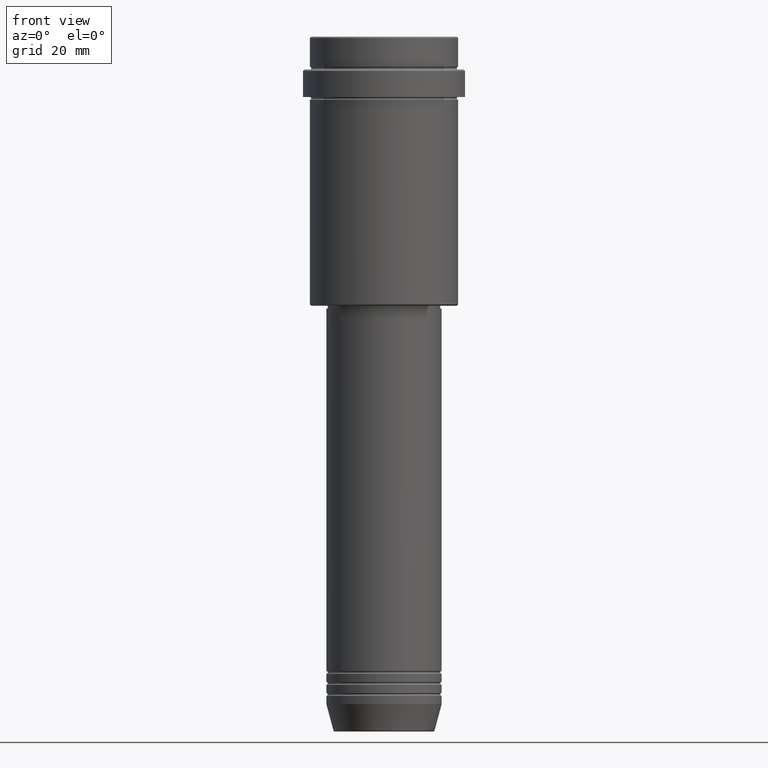
[diagram: clean part render]
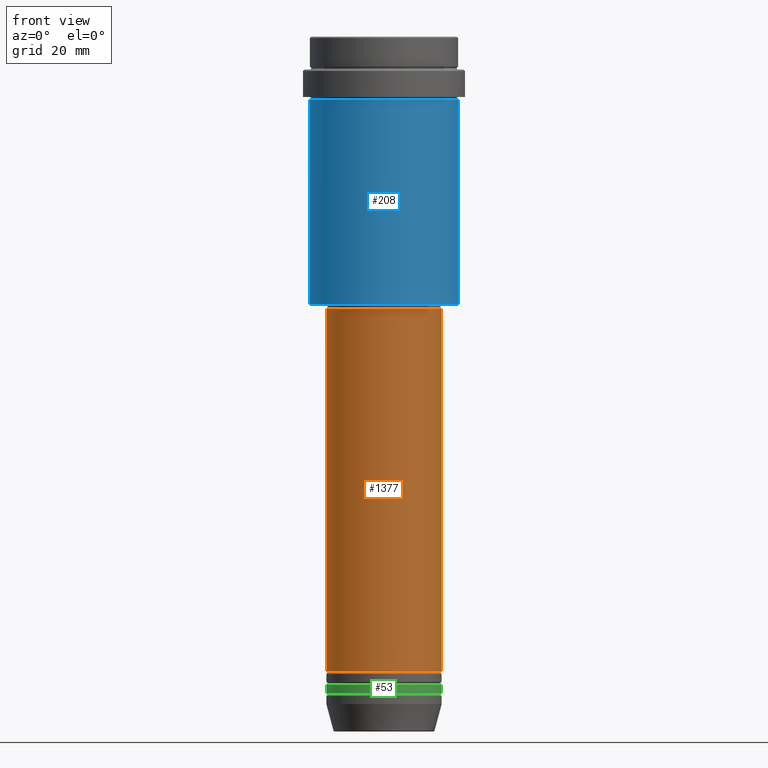
[diagram: same view with three faces highlighted in distinct colors, each labeled with its STEP entity id]
A machine part, front view with three faces highlighted in distinct colors.
Their STEP definitions:

[orange] entity #1377 — the highlighted cylindrical surface (partial cylindrical patch) has radius 21 mm, axis along (-0, -0, 1).
#70 = CYLINDRICAL_SURFACE ( 'NONE', #653, 21.00000000000000000 ) ;
#82 = VECTOR ( 'NONE', #1220, 1000.000000000000000 ) ;
#97 = CARTESIAN_POINT ( 'NONE',  ( 21.00000000000000000, 0.000000000000000000, 0.000000000000000000 ) ) ;
#159 = EDGE_LOOP ( 'NONE', ( #268, #470, #748, #266 ) ) ;
#161 = VERTEX_POINT ( 'NONE', #980 ) ;
#181 = DIRECTION ( 'NONE',  ( 1.000000000000000000, 0.000000000000000000, 0.000000000000000000 ) ) ;
#190 = VERTEX_POINT ( 'NONE', #1194 ) ;
#266 = ORIENTED_EDGE ( 'NONE', *, *, #619, .F. ) ;
#268 = ORIENTED_EDGE ( 'NONE', *, *, #471, .F. ) ;
#289 = DIRECTION ( 'NONE',  ( 1.000000000000000000, 0.000000000000000000, 0.000000000000000000 ) ) ;
#416 = CARTESIAN_POINT ( 'NONE',  ( -21.00000000000000000, 2.571758278209441661E-15, -99.00000000000000000 ) ) ;
#452 = LINE ( 'NONE', #887, #82 ) ;
#470 = ORIENTED_EDGE ( 'NONE', *, *, #585, .T. ) ;
#471 = EDGE_CURVE ( 'NONE', #190, #753, #452, .T. ) ;
#564 = AXIS2_PLACEMENT_3D ( 'NONE', #734, #1393, #1294 ) ;
#572 = CARTESIAN_POINT ( 'NONE',  ( 21.00000000000000000, 0.000000000000000000, -99.00000000000000000 ) ) ;
#585 = EDGE_CURVE ( 'NONE', #190, #161, #630, .T. ) ;
#619 = EDGE_CURVE ( 'NONE', #753, #761, #1063, .T. ) ;
#630 = CIRCLE ( 'NONE', #1384, 21.00000000000000000 ) ;
#631 = DIRECTION ( 'NONE',  ( -0.000000000000000000, -0.000000000000000000, 1.000000000000000000 ) ) ;
#653 = AXIS2_PLACEMENT_3D ( 'NONE', #1369, #631, #181 ) ;
#707 = EDGE_CURVE ( 'NONE', #161, #761, #1305, .T. ) ;
#732 = FACE_OUTER_BOUND ( 'NONE', #159, .T. ) ;
#734 = CARTESIAN_POINT ( 'NONE',  ( 0.000000000000000000, 0.000000000000000000, -99.00000000000000000 ) ) ;
#748 = ORIENTED_EDGE ( 'NONE', *, *, #707, .T. ) ;
#753 = VERTEX_POINT ( 'NONE', #416 ) ;
#761 = VERTEX_POINT ( 'NONE', #572 ) ;
#818 = VECTOR ( 'NONE', #1077, 1000.000000000000000 ) ;
#887 = CARTESIAN_POINT ( 'NONE',  ( -21.00000000000000000, 2.571758278209441661E-15, 0.000000000000000000 ) ) ;
#944 = CARTESIAN_POINT ( 'NONE',  ( 0.000000000000000000, 0.000000000000000000, -230.9999999999998863 ) ) ;
#980 = CARTESIAN_POINT ( 'NONE',  ( 21.00000000000000000, 0.000000000000000000, -230.9999999999998863 ) ) ;
#1063 = CIRCLE ( 'NONE', #564, 21.00000000000000000 ) ;
#1077 = DIRECTION ( 'NONE',  ( -0.000000000000000000, -0.000000000000000000, 1.000000000000000000 ) ) ;
#1194 = CARTESIAN_POINT ( 'NONE',  ( -21.00000000000000000, 2.571758278209441661E-15, -230.9999999999998863 ) ) ;
#1220 = DIRECTION ( 'NONE',  ( -0.000000000000000000, -0.000000000000000000, 1.000000000000000000 ) ) ;
#1294 = DIRECTION ( 'NONE',  ( 1.000000000000000000, 0.000000000000000000, 0.000000000000000000 ) ) ;
#1305 = LINE ( 'NONE', #97, #818 ) ;
#1369 = CARTESIAN_POINT ( 'NONE',  ( 0.000000000000000000, 0.000000000000000000, 0.000000000000000000 ) ) ;
#1377 = ADVANCED_FACE ( 'NONE', ( #732 ), #70, .T. ) ;
#1379 = DIRECTION ( 'NONE',  ( -0.000000000000000000, -0.000000000000000000, 1.000000000000000000 ) ) ;
#1384 = AXIS2_PLACEMENT_3D ( 'NONE', #944, #1379, #289 ) ;
#1393 = DIRECTION ( 'NONE',  ( -0.000000000000000000, -0.000000000000000000, 1.000000000000000000 ) ) ;

[blue] entity #208 — the highlighted cylindrical surface (partial cylindrical patch) has radius 27 mm, axis along (-0, -0, 1).
#26 = ORIENTED_EDGE ( 'NONE', *, *, #114, .F. ) ;
#41 = CIRCLE ( 'NONE', #812, 27.00000000000000355 ) ;
#107 = VERTEX_POINT ( 'NONE', #163 ) ;
#114 = EDGE_CURVE ( 'NONE', #1322, #801, #351, .T. ) ;
#121 = CARTESIAN_POINT ( 'NONE',  ( 27.00000000000000355, 0.000000000000000000, -23.00000000000001421 ) ) ;
#163 = CARTESIAN_POINT ( 'NONE',  ( -27.00000000000000355, 3.306546357697854128E-15, -97.50000000000004263 ) ) ;
#208 = ADVANCED_FACE ( 'NONE', ( #418 ), #1395, .T. ) ;
#282 = AXIS2_PLACEMENT_3D ( 'NONE', #516, #957, #826 ) ;
#294 = DIRECTION ( 'NONE',  ( -0.000000000000000000, -0.000000000000000000, 1.000000000000000000 ) ) ;
#351 = CIRCLE ( 'NONE', #282, 27.00000000000000355 ) ;
#375 = DIRECTION ( 'NONE',  ( -0.000000000000000000, -0.000000000000000000, 1.000000000000000000 ) ) ;
#418 = FACE_OUTER_BOUND ( 'NONE', #575, .T. ) ;
#516 = CARTESIAN_POINT ( 'NONE',  ( 0.000000000000000000, 0.000000000000000000, -23.00000000000001421 ) ) ;
#556 = DIRECTION ( 'NONE',  ( -1.000000000000000000, 0.000000000000000000, 0.000000000000000000 ) ) ;
#575 = EDGE_LOOP ( 'NONE', ( #740, #1263, #1237, #26 ) ) ;
#589 = CARTESIAN_POINT ( 'NONE',  ( 27.00000000000000355, 0.000000000000000000, -97.50000000000004263 ) ) ;
#643 = EDGE_CURVE ( 'NONE', #773, #801, #756, .T. ) ;
#680 = VECTOR ( 'NONE', #294, 1000.000000000000000 ) ;
#740 = ORIENTED_EDGE ( 'NONE', *, *, #943, .F. ) ;
#751 = CARTESIAN_POINT ( 'NONE',  ( 0.000000000000000000, 0.000000000000000000, 0.000000000000000000 ) ) ;
#756 = LINE ( 'NONE', #1193, #680 ) ;
#773 = VERTEX_POINT ( 'NONE', #589 ) ;
#801 = VERTEX_POINT ( 'NONE', #121 ) ;
#805 = CARTESIAN_POINT ( 'NONE',  ( -27.00000000000000355, 3.306546357697854128E-15, -23.00000000000001421 ) ) ;
#812 = AXIS2_PLACEMENT_3D ( 'NONE', #1234, #1131, #556 ) ;
#826 = DIRECTION ( 'NONE',  ( 1.000000000000000000, 0.000000000000000000, 0.000000000000000000 ) ) ;
#858 = DIRECTION ( 'NONE',  ( 1.000000000000000000, 0.000000000000000000, 0.000000000000000000 ) ) ;
#862 = EDGE_CURVE ( 'NONE', #107, #773, #41, .T. ) ;
#907 = VECTOR ( 'NONE', #375, 1000.000000000000000 ) ;
#943 = EDGE_CURVE ( 'NONE', #107, #1322, #1142, .T. ) ;
#957 = DIRECTION ( 'NONE',  ( -0.000000000000000000, -0.000000000000000000, 1.000000000000000000 ) ) ;
#1131 = DIRECTION ( 'NONE',  ( -0.000000000000000000, -0.000000000000000000, 1.000000000000000000 ) ) ;
#1142 = LINE ( 'NONE', #1355, #907 ) ;
#1193 = CARTESIAN_POINT ( 'NONE',  ( 27.00000000000000355, 0.000000000000000000, 0.000000000000000000 ) ) ;
#1234 = CARTESIAN_POINT ( 'NONE',  ( 0.000000000000000000, 0.000000000000000000, -97.50000000000004263 ) ) ;
#1237 = ORIENTED_EDGE ( 'NONE', *, *, #643, .T. ) ;
#1263 = ORIENTED_EDGE ( 'NONE', *, *, #862, .T. ) ;
#1301 = DIRECTION ( 'NONE',  ( -0.000000000000000000, -0.000000000000000000, 1.000000000000000000 ) ) ;
#1322 = VERTEX_POINT ( 'NONE', #805 ) ;
#1355 = CARTESIAN_POINT ( 'NONE',  ( -27.00000000000000355, 3.306546357697854128E-15, 0.000000000000000000 ) ) ;
#1395 = CYLINDRICAL_SURFACE ( 'NONE', #1408, 27.00000000000000355 ) ;
#1408 = AXIS2_PLACEMENT_3D ( 'NONE', #751, #1301, #858 ) ;

[green] entity #53 — the highlighted cylindrical surface (partial cylindrical patch) has radius 21 mm, axis along (-0, -0, 1).
#53 = ADVANCED_FACE ( 'NONE', ( #1150 ), #845, .T. ) ;
#55 = EDGE_CURVE ( 'NONE', #693, #759, #1015, .T. ) ;
#120 = ORIENTED_EDGE ( 'NONE', *, *, #170, .T. ) ;
#170 = EDGE_CURVE ( 'NONE', #491, #759, #966, .T. ) ;
#173 = CARTESIAN_POINT ( 'NONE',  ( 0.000000000000000000, 0.000000000000000000, -235.9999999999998863 ) ) ;
#213 = AXIS2_PLACEMENT_3D ( 'NONE', #1368, #407, #1055 ) ;
#218 = CARTESIAN_POINT ( 'NONE',  ( -21.00000000000000000, 2.571758278209441661E-15, -235.9999999999998863 ) ) ;
#267 = CARTESIAN_POINT ( 'NONE',  ( -21.00000000000000000, 2.571758278209441661E-15, -238.9999999999998863 ) ) ;
#327 = AXIS2_PLACEMENT_3D ( 'NONE', #444, #1082, #982 ) ;
#386 = DIRECTION ( 'NONE',  ( -0.000000000000000000, -0.000000000000000000, 1.000000000000000000 ) ) ;
#407 = DIRECTION ( 'NONE',  ( -0.000000000000000000, -0.000000000000000000, 1.000000000000000000 ) ) ;
#444 = CARTESIAN_POINT ( 'NONE',  ( 0.000000000000000000, 0.000000000000000000, -238.9999999999998863 ) ) ;
#484 = LINE ( 'NONE', #1028, #511 ) ;
#490 = DIRECTION ( 'NONE',  ( -0.000000000000000000, -0.000000000000000000, 1.000000000000000000 ) ) ;
#491 = VERTEX_POINT ( 'NONE', #1149 ) ;
#511 = VECTOR ( 'NONE', #490, 1000.000000000000000 ) ;
#528 = CARTESIAN_POINT ( 'NONE',  ( 21.00000000000000000, 0.000000000000000000, 0.000000000000000000 ) ) ;
#583 = AXIS2_PLACEMENT_3D ( 'NONE', #173, #386, #1267 ) ;
#644 = DIRECTION ( 'NONE',  ( -0.000000000000000000, -0.000000000000000000, 1.000000000000000000 ) ) ;
#685 = EDGE_LOOP ( 'NONE', ( #1311, #1221, #120, #1210 ) ) ;
#693 = VERTEX_POINT ( 'NONE', #218 ) ;
#759 = VERTEX_POINT ( 'NONE', #875 ) ;
#764 = VECTOR ( 'NONE', #644, 1000.000000000000000 ) ;
#845 = CYLINDRICAL_SURFACE ( 'NONE', #213, 21.00000000000000000 ) ;
#875 = CARTESIAN_POINT ( 'NONE',  ( 21.00000000000000000, 0.000000000000000000, -235.9999999999998863 ) ) ;
#966 = LINE ( 'NONE', #528, #764 ) ;
#982 = DIRECTION ( 'NONE',  ( 1.000000000000000000, 0.000000000000000000, 0.000000000000000000 ) ) ;
#1014 = CIRCLE ( 'NONE', #327, 21.00000000000000000 ) ;
#1015 = CIRCLE ( 'NONE', #583, 21.00000000000000000 ) ;
#1028 = CARTESIAN_POINT ( 'NONE',  ( -21.00000000000000000, 2.571758278209441661E-15, 0.000000000000000000 ) ) ;
#1055 = DIRECTION ( 'NONE',  ( 1.000000000000000000, 0.000000000000000000, 0.000000000000000000 ) ) ;
#1082 = DIRECTION ( 'NONE',  ( -0.000000000000000000, -0.000000000000000000, 1.000000000000000000 ) ) ;
#1147 = EDGE_CURVE ( 'NONE', #1239, #491, #1014, .T. ) ;
#1149 = CARTESIAN_POINT ( 'NONE',  ( 21.00000000000000000, 0.000000000000000000, -238.9999999999998863 ) ) ;
#1150 = FACE_OUTER_BOUND ( 'NONE', #685, .T. ) ;
#1210 = ORIENTED_EDGE ( 'NONE', *, *, #55, .F. ) ;
#1221 = ORIENTED_EDGE ( 'NONE', *, *, #1147, .T. ) ;
#1239 = VERTEX_POINT ( 'NONE', #267 ) ;
#1267 = DIRECTION ( 'NONE',  ( 1.000000000000000000, 0.000000000000000000, 0.000000000000000000 ) ) ;
#1275 = EDGE_CURVE ( 'NONE', #1239, #693, #484, .T. ) ;
#1311 = ORIENTED_EDGE ( 'NONE', *, *, #1275, .F. ) ;
#1368 = CARTESIAN_POINT ( 'NONE',  ( 0.000000000000000000, 0.000000000000000000, 0.000000000000000000 ) ) ;